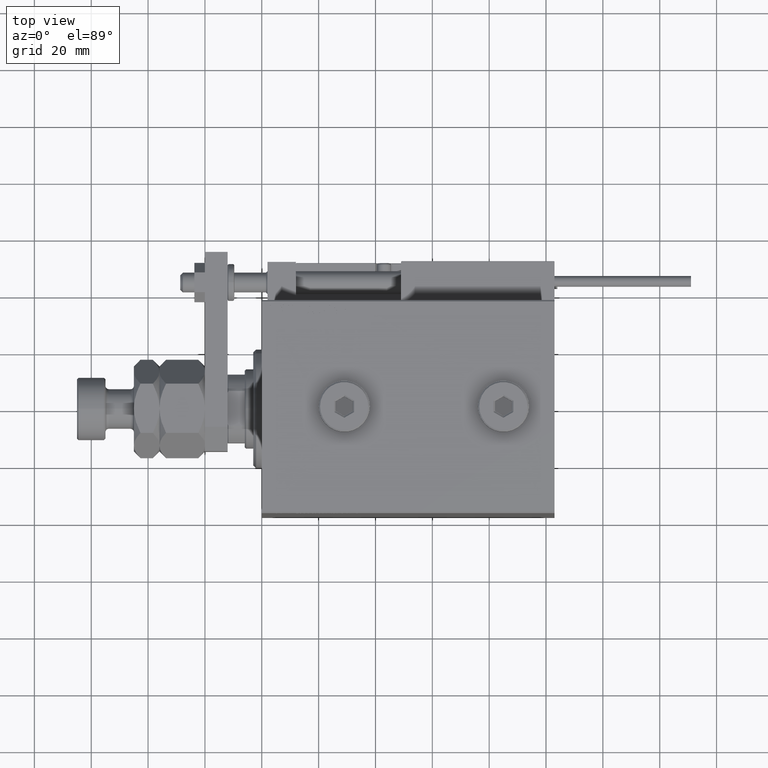
[diagram: clean part render]
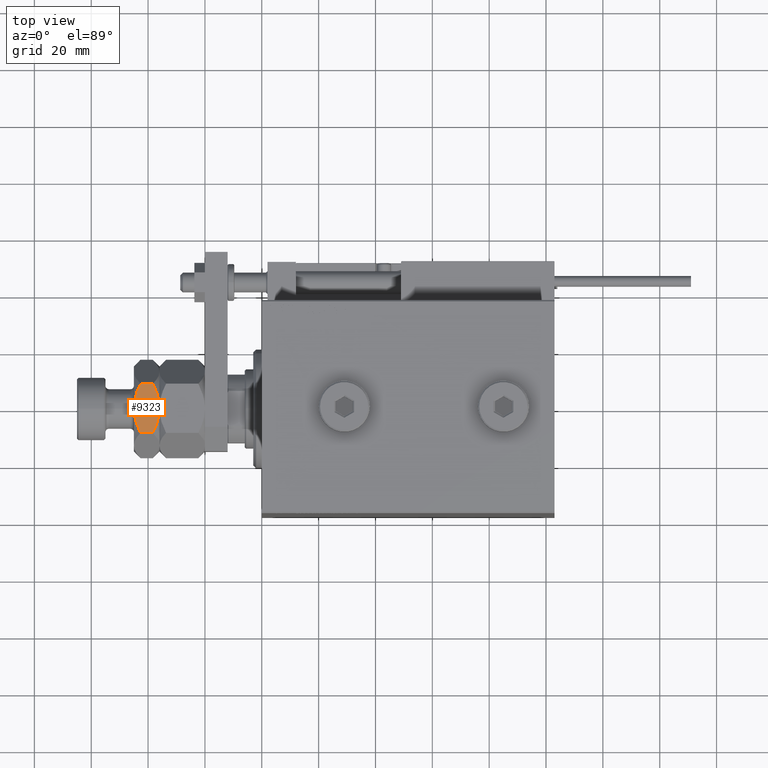
[diagram: same view with one face highlighted and labeled with its STEP entity id]
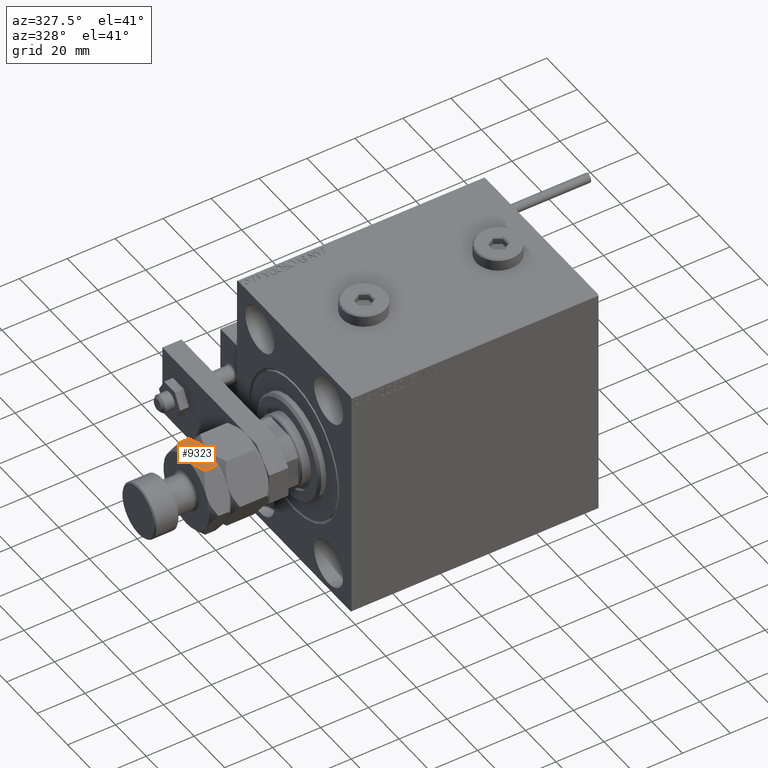
[diagram: same view with one face highlighted and labeled with its STEP entity id]
A machine part, top view. The second image highlights one B-rep face of the part: STEP entity #9323.
A second angle (auxiliary view) of the same face is appended — the face is thin or edge-on in the first view.
In plain terms, the highlighted planar face has unit normal (-0, -0, -1).
Its self-contained STEP definition (entity closure, byte-faithful):
#180 = B_SPLINE_CURVE_WITH_KNOTS ( 'NONE', 3,
 ( #26768, #14630, #51573, #2216, #39165, #25709, #6264, #10305, #5208, #30540 ),
 .UNSPECIFIED., .F., .F.,
 ( 4, 2, 2, 2, 4 ),
 ( 0.02288126756189531180, 0.02513980803698757580, 0.02626907827453370953, 0.02739834851207984326, 0.03191542946226437472 ),
 .UNSPECIFIED. ) ;
#609 = CARTESIAN_POINT ( 'NONE',  ( 14.99999999999999822, 3.006083412830564683, 24.71938903440270607 ) ) ;
#647 = CARTESIAN_POINT ( 'NONE',  ( 14.99999999999999645, 1.502314598737159426E-15, 25.00000000000000000 ) ) ;
#721 = CARTESIAN_POINT ( 'NONE',  ( 14.99999999999999822, -0.7628644205843061465, 16.01467181866700784 ) ) ;
#880 = CARTESIAN_POINT ( 'NONE',  ( 14.99999999999999822, 7.301375305910570823, 23.32983397160520411 ) ) ;
#2216 = CARTESIAN_POINT ( 'NONE',  ( 14.99999999999999112, 6.248143622294145771, 17.24609782017707715 ) ) ;
#2509 = CARTESIAN_POINT ( 'NONE',  ( 14.99999999999999822, -8.660254037844383745, 22.67949192431123961 ) ) ;
#2533 = CARTESIAN_POINT ( 'NONE',  ( 14.99999999999999645, 8.660254037844387298, 18.32050807568876394 ) ) ;
#2633 = B_SPLINE_CURVE_WITH_KNOTS ( 'NONE', 3,
 ( #40284, #11966, #3867, #36762, #41074, #609, #8427, #42132, #41606, #880, #17055, #38359 ),
 .UNSPECIFIED., .F., .F.,
 ( 4, 2, 2, 2, 2, 4 ),
 ( 0.03191542946226437472, 0.03304303448889991252, 0.03417063951553545031, 0.03642584956880652591, 0.03868105962207760845, 0.04093626967534868405 ),
 .UNSPECIFIED. ) ;
#2884 = EDGE_LOOP ( 'NONE', ( #9251, #38063, #9265, #26246, #33824, #37849 ) ) ;
#3445 = DIRECTION ( 'NONE',  ( 1.001543065824773222E-16, -1.000000000000000000, 0.000000000000000000 ) ) ;
#3867 = CARTESIAN_POINT ( 'NONE',  ( 14.99999999999999645, 0.7628644205843058135, 24.98532818133299571 ) ) ;
#5041 = CARTESIAN_POINT ( 'NONE',  ( 15.00000000000000000, -7.301375305910570823, 17.67016602839480299 ) ) ;
#5208 = CARTESIAN_POINT ( 'NONE',  ( 14.99999999999999645, 1.524122972781247309, 15.99999999999999645 ) ) ;
#6264 = CARTESIAN_POINT ( 'NONE',  ( 14.99999999999999822, 4.814853579356897839, 16.74999630955690577 ) ) ;
#7143 = AXIS2_PLACEMENT_3D ( 'NONE', #45240, #28248, #3445 ) ;
#8427 = CARTESIAN_POINT ( 'NONE',  ( 14.99999999999999645, 3.737365789271271943, 24.55689843594664268 ) ) ;
#8752 = VERTEX_POINT ( 'NONE', #647 ) ;
#9251 = ORIENTED_EDGE ( 'NONE', *, *, #12270, .F. ) ;
#9265 = ORIENTED_EDGE ( 'NONE', *, *, #52629, .F. ) ;
#9323 = ADVANCED_FACE ( 'NONE', ( #44974 ), #11814, .F. ) ;
#9943 = VERTEX_POINT ( 'NONE', #50224 ) ;
#10305 = CARTESIAN_POINT ( 'NONE',  ( 14.99999999999999467, 3.004852722955711819, 16.23490203621984307 ) ) ;
#11814 = PLANE ( 'NONE',  #7143 ) ;
#11966 = CARTESIAN_POINT ( 'NONE',  ( 14.99999999999999822, 0.3804688789667641791, 25.00000000000000000 ) ) ;
#12270 = EDGE_CURVE ( 'NONE', #29072, #44037, #180, .T. ) ;
#13006 = VECTOR ( 'NONE', #44465, 1000.000000000000000 ) ;
#13145 = CARTESIAN_POINT ( 'NONE',  ( 14.99999999999999645, -5.180699559534208021, 16.85437260824312844 ) ) ;
#13669 = CARTESIAN_POINT ( 'NONE',  ( 15.00000000000000000, -7.988323794068004524, 17.98454295380057744 ) ) ;
#14552 = EDGE_CURVE ( 'NONE', #35497, #8752, #29612, .T. ) ;
#14630 = CARTESIAN_POINT ( 'NONE',  ( 14.99999999999999645, 7.988341278889603991, 17.98455169621137983 ) ) ;
#14932 = CARTESIAN_POINT ( 'NONE',  ( 14.99999999999999645, -7.303107243978799623, 23.32903847857429014 ) ) ;
#15076 = EDGE_CURVE ( 'NONE', #43312, #29072, #41512, .T. ) ;
#17055 = CARTESIAN_POINT ( 'NONE',  ( 14.99999999999999645, 7.988323794068006301, 23.01545704619942256 ) ) ;
#19237 = CARTESIAN_POINT ( 'NONE',  ( 15.00000000000000000, -5.174827754835039428, 24.13601744246643932 ) ) ;
#21022 = CARTESIAN_POINT ( 'NONE',  ( 14.99999999999999645, 8.660254037844385522, 25.00000000000000000 ) ) ;
#21774 = CARTESIAN_POINT ( 'NONE',  ( 15.00000000000000178, -0.3804688789667639015, 16.00000000000000000 ) ) ;
#22113 = EDGE_CURVE ( 'NONE', #44037, #9943, #49120, .T. ) ;
#23288 = CARTESIAN_POINT ( 'NONE',  ( 14.99999999999999645, 1.502314598737159426E-15, 25.00000000000000000 ) ) ;
#25709 = CARTESIAN_POINT ( 'NONE',  ( 15.00000000000000000, 5.174827754835041205, 16.86398255753356423 ) ) ;
#26246 = ORIENTED_EDGE ( 'NONE', *, *, #14552, .F. ) ;
#26768 = CARTESIAN_POINT ( 'NONE',  ( 14.99999999999999645, 8.660254037844387298, 18.32050807568876394 ) ) ;
#28013 = LINE ( 'NONE', #28271, #13006 ) ;
#28248 = DIRECTION ( 'NONE',  ( -1.000000000000000000, -1.001543065824773222E-16, 0.000000000000000000 ) ) ;
#28271 = CARTESIAN_POINT ( 'NONE',  ( 14.99999999999999822, -8.660254037844381969, 25.00000000000000000 ) ) ;
#28343 = CARTESIAN_POINT ( 'NONE',  ( 14.99999999999999822, -8.660254037844383745, 22.67949192431123961 ) ) ;
#29072 = VERTEX_POINT ( 'NONE', #2533 ) ;
#29591 = CARTESIAN_POINT ( 'NONE',  ( 15.00000000000000000, -1.891887532498635061, 16.11437633297792615 ) ) ;
#29612 = B_SPLINE_CURVE_WITH_KNOTS ( 'NONE', 3,
 ( #2509, #51875, #14932, #35676, #31373, #19237, #39734, #47834, #43779, #23288 ),
 .UNSPECIFIED., .F., .F.,
 ( 4, 2, 2, 2, 4 ),
 ( 0.02288126756189531180, 0.02513980803698757580, 0.02626907827453370953, 0.02739834851207984326, 0.03191542946226437472 ),
 .UNSPECIFIED. ) ;
#30384 = CARTESIAN_POINT ( 'NONE',  ( 15.00000000000000178, -3.006083412830564239, 16.28061096559729393 ) ) ;
#30540 = CARTESIAN_POINT ( 'NONE',  ( 14.99999999999999645, 0.000000000000000000, 16.00000000000000000 ) ) ;
#31373 = CARTESIAN_POINT ( 'NONE',  ( 14.99999999999999822, -5.891098461327062275, 23.88813662624436773 ) ) ;
#33357 = CARTESIAN_POINT ( 'NONE',  ( 15.00000000000000000, -8.660254037844381969, 18.32050807568876394 ) ) ;
#33571 = CARTESIAN_POINT ( 'NONE',  ( 14.99999999999999822, 8.660254037844385522, 22.67949192431123961 ) ) ;
#33824 = ORIENTED_EDGE ( 'NONE', *, *, #43856, .T. ) ;
#35497 = VERTEX_POINT ( 'NONE', #28343 ) ;
#35676 = CARTESIAN_POINT ( 'NONE',  ( 14.99999999999999112, -6.248143622294143107, 23.75390217982290864 ) ) ;
#36762 = CARTESIAN_POINT ( 'NONE',  ( 14.99999999999999467, 1.517610682399677557, 24.92812055908709112 ) ) ;
#37469 = DIRECTION ( 'NONE',  ( -0.000000000000000000, -0.000000000000000000, -1.000000000000000000 ) ) ;
#37849 = ORIENTED_EDGE ( 'NONE', *, *, #22113, .F. ) ;
#38063 = ORIENTED_EDGE ( 'NONE', *, *, #15076, .F. ) ;
#38359 = CARTESIAN_POINT ( 'NONE',  ( 14.99999999999999822, 8.660254037844385522, 22.67949192431123961 ) ) ;
#39165 = CARTESIAN_POINT ( 'NONE',  ( 14.99999999999999467, 5.891098461327064051, 17.11186337375562871 ) ) ;
#39734 = CARTESIAN_POINT ( 'NONE',  ( 15.00000000000000178, -4.814853579356896063, 24.25000369044311199 ) ) ;
#40284 = CARTESIAN_POINT ( 'NONE',  ( 14.99999999999999645, 1.502314598737159426E-15, 25.00000000000000000 ) ) ;
#41074 = CARTESIAN_POINT ( 'NONE',  ( 14.99999999999999467, 1.891887532498635061, 24.88562366702208095 ) ) ;
#41512 = LINE ( 'NONE', #21022, #47724 ) ;
#41606 = CARTESIAN_POINT ( 'NONE',  ( 14.99999999999999645, 5.892768039091680343, 23.89692361009772625 ) ) ;
#42132 = CARTESIAN_POINT ( 'NONE',  ( 14.99999999999999822, 5.180699559534207133, 24.14562739175687867 ) ) ;
#42260 = CARTESIAN_POINT ( 'NONE',  ( 14.99999999999999822, -1.517610682399678002, 16.07187944091290888 ) ) ;
#43312 = VERTEX_POINT ( 'NONE', #33571 ) ;
#43779 = CARTESIAN_POINT ( 'NONE',  ( 14.99999999999999645, -1.524122972781246865, 25.00000000000000000 ) ) ;
#43856 = EDGE_CURVE ( 'NONE', #35497, #9943, #28013, .T. ) ;
#44037 = VERTEX_POINT ( 'NONE', #51171 ) ;
#44465 = DIRECTION ( 'NONE',  ( -0.000000000000000000, -0.000000000000000000, -1.000000000000000000 ) ) ;
#44974 = FACE_OUTER_BOUND ( 'NONE', #2884, .T. ) ;
#45240 = CARTESIAN_POINT ( 'NONE',  ( 14.99999999999999822, -8.660254037844381969, 25.00000000000000000 ) ) ;
#46044 = CARTESIAN_POINT ( 'NONE',  ( 15.00000000000000000, -3.737365789271273275, 16.44310156405335732 ) ) ;
#46306 = CARTESIAN_POINT ( 'NONE',  ( 14.99999999999999645, 0.000000000000000000, 16.00000000000000000 ) ) ;
#46574 = CARTESIAN_POINT ( 'NONE',  ( 15.00000000000000178, -5.892768039091683008, 17.10307638990227730 ) ) ;
#47724 = VECTOR ( 'NONE', #37469, 1000.000000000000000 ) ;
#47834 = CARTESIAN_POINT ( 'NONE',  ( 15.00000000000000000, -3.004852722955709154, 24.76509796378016404 ) ) ;
#49120 = B_SPLINE_CURVE_WITH_KNOTS ( 'NONE', 3,
 ( #46306, #21774, #721, #42260, #29591, #30384, #46044, #13145, #46574, #5041, #13669, #33357 ),
 .UNSPECIFIED., .F., .F.,
 ( 4, 2, 2, 2, 2, 4 ),
 ( 0.03191542946226437472, 0.03304303448889991252, 0.03417063951553545031, 0.03642584956880652591, 0.03868105962207760151, 0.04093626967534867711 ),
 .UNSPECIFIED. ) ;
#50224 = CARTESIAN_POINT ( 'NONE',  ( 15.00000000000000000, -8.660254037844381969, 18.32050807568876394 ) ) ;
#51171 = CARTESIAN_POINT ( 'NONE',  ( 14.99999999999999645, 0.000000000000000000, 16.00000000000000000 ) ) ;
#51573 = CARTESIAN_POINT ( 'NONE',  ( 14.99999999999999645, 7.303107243978802288, 17.67096152142570986 ) ) ;
#51875 = CARTESIAN_POINT ( 'NONE',  ( 14.99999999999999822, -7.988341278889598662, 23.01544830378863438 ) ) ;
#52629 = EDGE_CURVE ( 'NONE', #8752, #43312, #2633, .T. ) ;